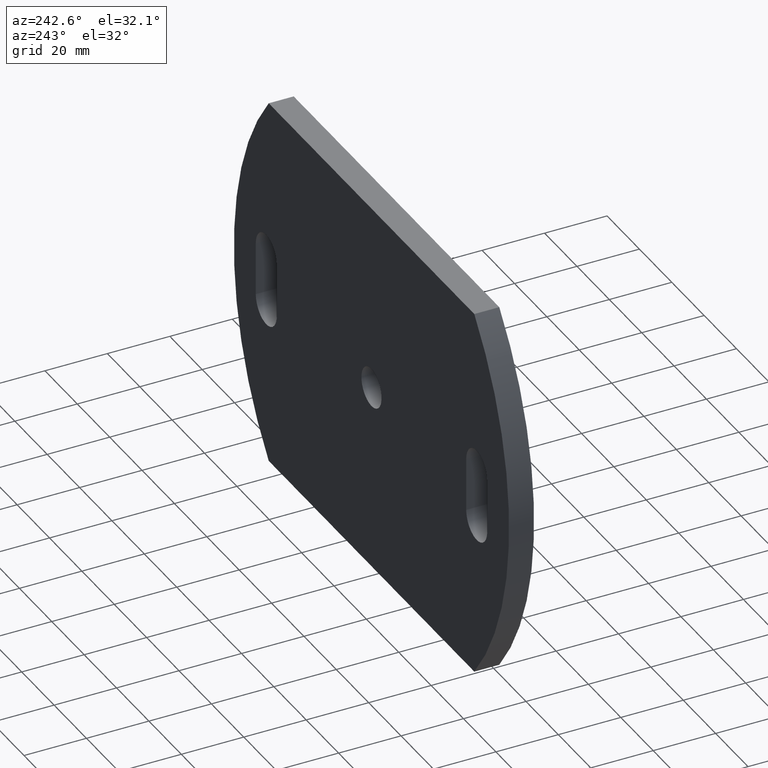
[diagram: clean part render]
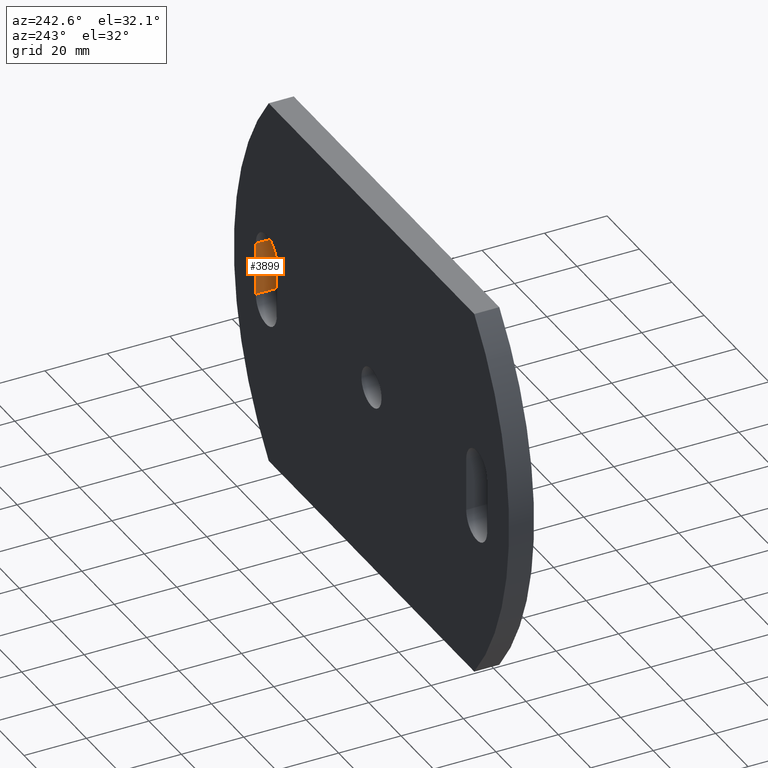
[diagram: same view with one face highlighted and labeled with its STEP entity id]
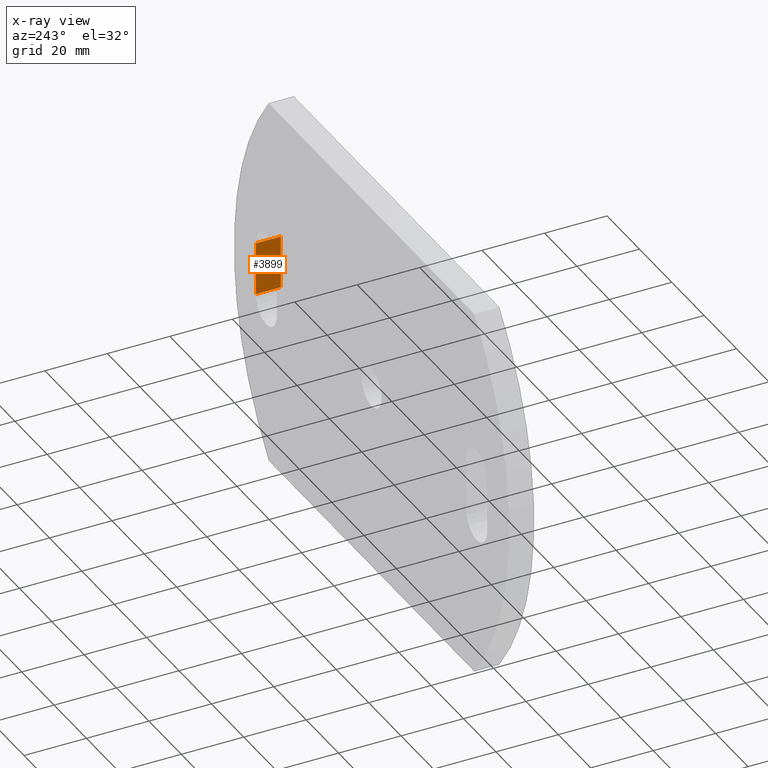
[diagram: x-ray of the same camera — body ghosted, the highlighted face saturated]
A machine part, auxiliary view. The second image highlights one B-rep face of the part: STEP entity #3899.
The next image is the same camera in x-ray: the body ghosted, the highlighted face saturated — about 3% of this face is hidden behind the body in this view.
In plain terms, the highlighted planar face has unit normal (1, 0, -0).
Its self-contained STEP definition (entity closure, byte-faithful):
#459 = DIRECTION ( 'NONE',  ( -0.0000000000000000000, 1.000000000000000000, -0.0000000000000000000 ) ) ;
#745 = CARTESIAN_POINT ( 'NONE',  ( 71.50000000000000000, 0.0000000000000000000, 8.500000000000010700 ) ) ;
#942 = ORIENTED_EDGE ( 'NONE', *, *, #1361, .F. ) ;
#1079 = CARTESIAN_POINT ( 'NONE',  ( 71.50000000000000000, 0.0000000000000000000, -8.500000000000010700 ) ) ;
#1361 = EDGE_CURVE ( 'NONE', #8164, #6493, #10583, .T. ) ;
#1443 = AXIS2_PLACEMENT_3D ( 'NONE', #3646, #2129, #6421 ) ;
#1615 = DIRECTION ( 'NONE',  ( -0.0000000000000000000, -0.0000000000000000000, -1.000000000000000000 ) ) ;
#2112 = VECTOR ( 'NONE', #459, 1000.000000000000000 ) ;
#2129 = DIRECTION ( 'NONE',  ( 1.000000000000000000, 0.0000000000000000000, -0.0000000000000000000 ) ) ;
#3151 = CARTESIAN_POINT ( 'NONE',  ( 71.50000000000000000, 0.0000000000000000000, -8.500000000000010700 ) ) ;
#3228 = CARTESIAN_POINT ( 'NONE',  ( 71.50000000000000000, 8.000000000000000000, -8.500000000000010700 ) ) ;
#3606 = PLANE ( 'NONE',  #1443 ) ;
#3646 = CARTESIAN_POINT ( 'NONE',  ( 71.50000000000000000, 0.0000000000000000000, -8.500000000000010700 ) ) ;
#3752 = LINE ( 'NONE', #3228, #5592 ) ;
#3843 = DIRECTION ( 'NONE',  ( -0.0000000000000000000, 1.000000000000000000, -0.0000000000000000000 ) ) ;
#3899 = ADVANCED_FACE ( 'NONE', ( #5329 ), #3606, .F. ) ;
#3967 = VERTEX_POINT ( 'NONE', #6648 ) ;
#4359 = CARTESIAN_POINT ( 'NONE',  ( 71.50000000000000000, 0.0000000000000000000, -8.500000000000010700 ) ) ;
#5271 = LINE ( 'NONE', #8116, #10490 ) ;
#5329 = FACE_OUTER_BOUND ( 'NONE', #8935, .T. ) ;
#5592 = VECTOR ( 'NONE', #1615, 1000.000000000000000 ) ;
#6103 = EDGE_CURVE ( 'NONE', #6493, #3967, #8619, .T. ) ;
#6175 = VECTOR ( 'NONE', #9342, 1000.000000000000000 ) ;
#6297 = ORIENTED_EDGE ( 'NONE', *, *, #6103, .F. ) ;
#6421 = DIRECTION ( 'NONE',  ( -0.0000000000000000000, 0.0000000000000000000, -1.000000000000000000 ) ) ;
#6493 = VERTEX_POINT ( 'NONE', #1079 ) ;
#6648 = CARTESIAN_POINT ( 'NONE',  ( 71.50000000000000000, 8.000000000000000000, -8.500000000000010700 ) ) ;
#6684 = EDGE_CURVE ( 'NONE', #8164, #8134, #5271, .T. ) ;
#8116 = CARTESIAN_POINT ( 'NONE',  ( 71.50000000000000000, 0.0000000000000000000, 8.500000000000010700 ) ) ;
#8134 = VERTEX_POINT ( 'NONE', #10066 ) ;
#8164 = VERTEX_POINT ( 'NONE', #745 ) ;
#8619 = LINE ( 'NONE', #3151, #2112 ) ;
#8787 = ORIENTED_EDGE ( 'NONE', *, *, #10789, .T. ) ;
#8931 = ORIENTED_EDGE ( 'NONE', *, *, #6684, .T. ) ;
#8935 = EDGE_LOOP ( 'NONE', ( #8787, #6297, #942, #8931 ) ) ;
#9342 = DIRECTION ( 'NONE',  ( -0.0000000000000000000, -0.0000000000000000000, -1.000000000000000000 ) ) ;
#10066 = CARTESIAN_POINT ( 'NONE',  ( 71.50000000000000000, 8.000000000000000000, 8.500000000000010700 ) ) ;
#10490 = VECTOR ( 'NONE', #3843, 1000.000000000000000 ) ;
#10583 = LINE ( 'NONE', #4359, #6175 ) ;
#10789 = EDGE_CURVE ( 'NONE', #8134, #3967, #3752, .T. ) ;